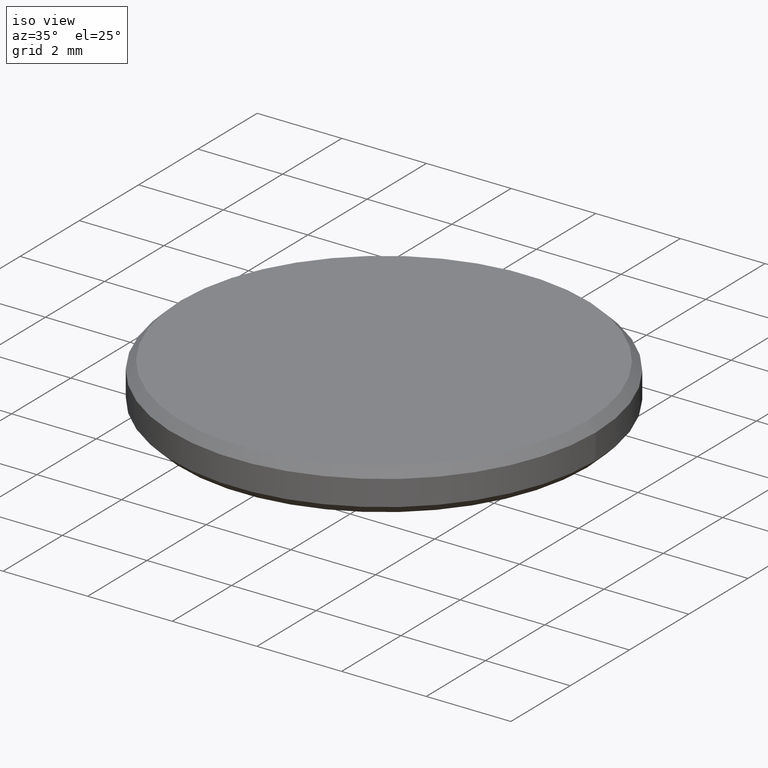
[diagram: clean part render]
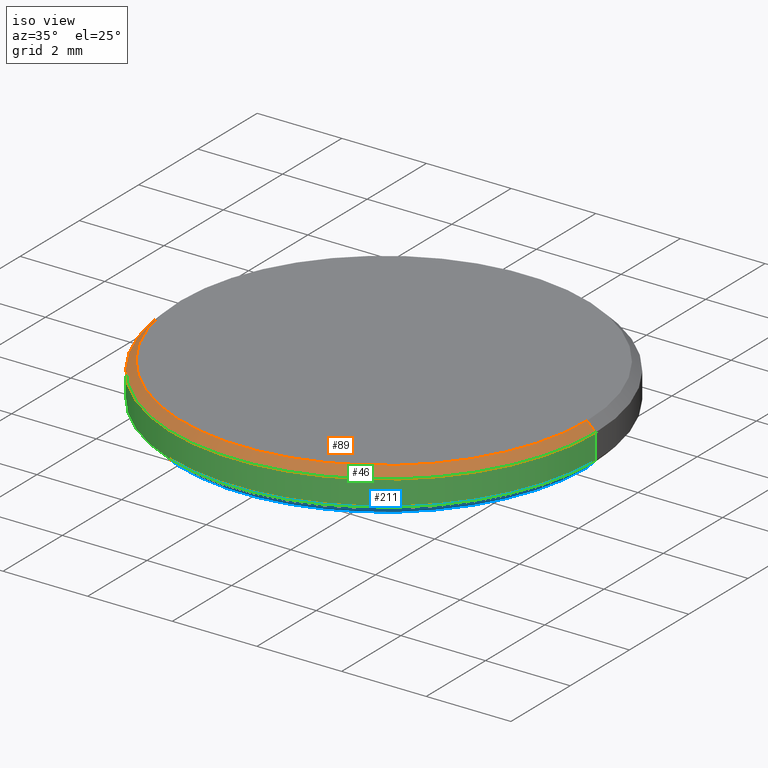
[diagram: same view with three faces highlighted in distinct colors, each labeled with its STEP entity id]
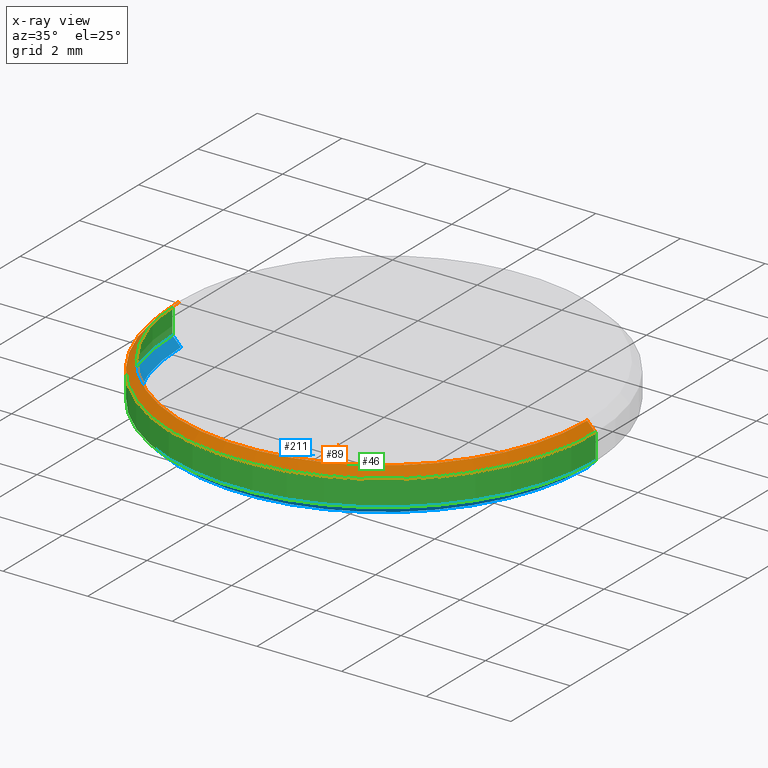
[diagram: x-ray of the same camera — body ghosted, the three highlighted faces saturated]
A machine part, iso view with three faces highlighted in distinct colors.
The next image is the same camera in x-ray (body ghosted, the three faces saturated) — at least one of them is partly hidden behind the body in this view.
Their STEP definitions:

[orange] entity #89 — the highlighted conical surface has half-angle 45 deg.
#6 = DIRECTION ( 'NONE',  ( 1.000000000000000000, 0.000000000000000000, 0.000000000000000000 ) ) ;
#14 = VECTOR ( 'NONE', #73, 1000.000000000000114 ) ;
#17 = CARTESIAN_POINT ( 'NONE',  ( -4.800000000000002487, 0.000000000000000000, 1.000000000000000000 ) ) ;
#19 = CARTESIAN_POINT ( 'NONE',  ( 5.000000000000000000, 6.123233995736766282E-16, 0.8000000000000012657 ) ) ;
#20 = EDGE_CURVE ( 'NONE', #198, #136, #74, .T. ) ;
#26 = CARTESIAN_POINT ( 'NONE',  ( 0.000000000000000000, 0.000000000000000000, 1.000000000000000000 ) ) ;
#39 = EDGE_LOOP ( 'NONE', ( #91, #157, #76, #140 ) ) ;
#55 = AXIS2_PLACEMENT_3D ( 'NONE', #181, #120, #6 ) ;
#60 = FACE_OUTER_BOUND ( 'NONE', #39, .T. ) ;
#66 = DIRECTION ( 'NONE',  ( 0.7071067811865460184, 8.659560562354913137E-17, -0.7071067811865489050 ) ) ;
#68 = LINE ( 'NONE', #133, #132 ) ;
#73 = DIRECTION ( 'NONE',  ( -0.7071067811865460184, 0.000000000000000000, -0.7071067811865489050 ) ) ;
#74 = LINE ( 'NONE', #17, #14 ) ;
#76 = ORIENTED_EDGE ( 'NONE', *, *, #20, .T. ) ;
#82 = DIRECTION ( 'NONE',  ( 1.000000000000000000, 0.000000000000000000, 0.000000000000000000 ) ) ;
#89 = ADVANCED_FACE ( 'NONE', ( #60 ), #175, .T. ) ;
#91 = ORIENTED_EDGE ( 'NONE', *, *, #170, .F. ) ;
#98 = DIRECTION ( 'NONE',  ( 0.000000000000000000, 0.000000000000000000, -1.000000000000000000 ) ) ;
#104 = AXIS2_PLACEMENT_3D ( 'NONE', #26, #179, #82 ) ;
#112 = CARTESIAN_POINT ( 'NONE',  ( -5.000000000000000000, 0.000000000000000000, 0.8000000000000012657 ) ) ;
#116 = CIRCLE ( 'NONE', #55, 5.000000000000000000 ) ;
#118 = CARTESIAN_POINT ( 'NONE',  ( -4.800000000000002487, 0.000000000000000000, 1.000000000000000000 ) ) ;
#120 = DIRECTION ( 'NONE',  ( 0.000000000000000000, 0.000000000000000000, -1.000000000000000000 ) ) ;
#124 = VERTEX_POINT ( 'NONE', #19 ) ;
#128 = CARTESIAN_POINT ( 'NONE',  ( 0.000000000000000000, 0.000000000000000000, 1.000000000000000000 ) ) ;
#132 = VECTOR ( 'NONE', #66, 1000.000000000000114 ) ;
#133 = CARTESIAN_POINT ( 'NONE',  ( 4.800000000000002487, 5.878304635907297169E-16, 1.000000000000000000 ) ) ;
#136 = VERTEX_POINT ( 'NONE', #112 ) ;
#140 = ORIENTED_EDGE ( 'NONE', *, *, #163, .F. ) ;
#143 = VERTEX_POINT ( 'NONE', #174 ) ;
#157 = ORIENTED_EDGE ( 'NONE', *, *, #183, .F. ) ;
#163 = EDGE_CURVE ( 'NONE', #124, #136, #116, .T. ) ;
#170 = EDGE_CURVE ( 'NONE', #143, #124, #68, .T. ) ;
#174 = CARTESIAN_POINT ( 'NONE',  ( 4.800000000000002487, 6.000769315822031726E-16, 1.000000000000000000 ) ) ;
#175 = CONICAL_SURFACE ( 'NONE', #216, 4.800000000000002487, 0.7853981633974461696 ) ;
#179 = DIRECTION ( 'NONE',  ( 0.000000000000000000, 0.000000000000000000, 1.000000000000000000 ) ) ;
#181 = CARTESIAN_POINT ( 'NONE',  ( 0.000000000000000000, 0.000000000000000000, 0.8000000000000012657 ) ) ;
#183 = EDGE_CURVE ( 'NONE', #198, #143, #202, .T. ) ;
#195 = DIRECTION ( 'NONE',  ( -1.000000000000000000, 0.000000000000000000, 0.000000000000000000 ) ) ;
#198 = VERTEX_POINT ( 'NONE', #118 ) ;
#202 = CIRCLE ( 'NONE', #104, 4.800000000000002487 ) ;
#216 = AXIS2_PLACEMENT_3D ( 'NONE', #128, #98, #195 ) ;

[blue] entity #211 — the highlighted conical surface has half-angle 45 deg.
#7 = DIRECTION ( 'NONE',  ( 0.7071067811865490160, 0.000000000000000000, 0.7071067811865459074 ) ) ;
#9 = CIRCLE ( 'NONE', #138, 4.799999999999999822 ) ;
#15 = CARTESIAN_POINT ( 'NONE',  ( 0.000000000000000000, 0.000000000000000000, 0.000000000000000000 ) ) ;
#31 = AXIS2_PLACEMENT_3D ( 'NONE', #102, #134, #205 ) ;
#32 = ORIENTED_EDGE ( 'NONE', *, *, #224, .T. ) ;
#36 = CARTESIAN_POINT ( 'NONE',  ( 4.799999999999999822, 0.000000000000000000, 0.000000000000000000 ) ) ;
#38 = EDGE_CURVE ( 'NONE', #93, #215, #9, .T. ) ;
#41 = DIRECTION ( 'NONE',  ( -0.000000000000000000, -0.000000000000000000, 1.000000000000000000 ) ) ;
#51 = VECTOR ( 'NONE', #239, 1000.000000000000000 ) ;
#61 = LINE ( 'NONE', #199, #51 ) ;
#64 = CONICAL_SURFACE ( 'NONE', #188, 5.000000000000000000, 0.7853981633974503884 ) ;
#71 = ORIENTED_EDGE ( 'NONE', *, *, #38, .F. ) ;
#79 = CARTESIAN_POINT ( 'NONE',  ( 5.000000000000000000, 0.000000000000000000, 0.1999999999999996503 ) ) ;
#93 = VERTEX_POINT ( 'NONE', #36 ) ;
#95 = CARTESIAN_POINT ( 'NONE',  ( -5.000000000000000000, 0.000000000000000000, 0.1999999999999996503 ) ) ;
#102 = CARTESIAN_POINT ( 'NONE',  ( 0.000000000000000000, 0.000000000000000000, 0.1999999999999996503 ) ) ;
#109 = CARTESIAN_POINT ( 'NONE',  ( 5.000000000000000000, 6.123233995736766282E-16, 0.1999999999999996503 ) ) ;
#110 = VERTEX_POINT ( 'NONE', #109 ) ;
#126 = ORIENTED_EDGE ( 'NONE', *, *, #131, .F. ) ;
#127 = VERTEX_POINT ( 'NONE', #95 ) ;
#131 = EDGE_CURVE ( 'NONE', #215, #127, #61, .T. ) ;
#134 = DIRECTION ( 'NONE',  ( -0.000000000000000000, -0.000000000000000000, 1.000000000000000000 ) ) ;
#137 = DIRECTION ( 'NONE',  ( -0.000000000000000000, -0.000000000000000000, -1.000000000000000000 ) ) ;
#138 = AXIS2_PLACEMENT_3D ( 'NONE', #15, #137, #218 ) ;
#150 = CARTESIAN_POINT ( 'NONE',  ( -4.799999999999999822, 6.000769315822029754E-16, 0.000000000000000000 ) ) ;
#158 = VECTOR ( 'NONE', #7, 1000.000000000000000 ) ;
#161 = LINE ( 'NONE', #79, #158 ) ;
#164 = CARTESIAN_POINT ( 'NONE',  ( 0.000000000000000000, 0.000000000000000000, 0.1999999999999996503 ) ) ;
#172 = ORIENTED_EDGE ( 'NONE', *, *, #190, .F. ) ;
#184 = DIRECTION ( 'NONE',  ( 1.000000000000000000, 0.000000000000000000, 0.000000000000000000 ) ) ;
#188 = AXIS2_PLACEMENT_3D ( 'NONE', #164, #41, #184 ) ;
#190 = EDGE_CURVE ( 'NONE', #127, #110, #226, .T. ) ;
#193 = EDGE_LOOP ( 'NONE', ( #126, #71, #32, #172 ) ) ;
#199 = CARTESIAN_POINT ( 'NONE',  ( -5.000000000000000000, 6.123233995736765296E-16, 0.1999999999999996503 ) ) ;
#205 = DIRECTION ( 'NONE',  ( 1.000000000000000000, 0.000000000000000000, 0.000000000000000000 ) ) ;
#209 = FACE_OUTER_BOUND ( 'NONE', #193, .T. ) ;
#211 = ADVANCED_FACE ( 'NONE', ( #209 ), #64, .T. ) ;
#215 = VERTEX_POINT ( 'NONE', #150 ) ;
#218 = DIRECTION ( 'NONE',  ( 1.000000000000000000, 0.000000000000000000, 0.000000000000000000 ) ) ;
#224 = EDGE_CURVE ( 'NONE', #93, #110, #161, .T. ) ;
#226 = CIRCLE ( 'NONE', #31, 5.000000000000000000 ) ;
#239 = DIRECTION ( 'NONE',  ( -0.7071067811865490160, 8.659560562354950115E-17, 0.7071067811865459074 ) ) ;

[green] entity #46 — the highlighted cylindrical surface (partial cylindrical patch) has radius 5 mm, axis along (-0, -0, -1).
#3 = DIRECTION ( 'NONE',  ( -0.000000000000000000, -0.000000000000000000, -1.000000000000000000 ) ) ;
#6 = DIRECTION ( 'NONE',  ( 1.000000000000000000, 0.000000000000000000, 0.000000000000000000 ) ) ;
#19 = CARTESIAN_POINT ( 'NONE',  ( 5.000000000000000000, 6.123233995736766282E-16, 0.8000000000000012657 ) ) ;
#21 = AXIS2_PLACEMENT_3D ( 'NONE', #125, #88, #194 ) ;
#23 = CARTESIAN_POINT ( 'NONE',  ( -5.000000000000000000, 0.000000000000000000, 1.000000000000000000 ) ) ;
#31 = AXIS2_PLACEMENT_3D ( 'NONE', #102, #134, #205 ) ;
#33 = FACE_OUTER_BOUND ( 'NONE', #34, .T. ) ;
#34 = EDGE_LOOP ( 'NONE', ( #192, #37, #58, #233 ) ) ;
#37 = ORIENTED_EDGE ( 'NONE', *, *, #163, .T. ) ;
#46 = ADVANCED_FACE ( 'NONE', ( #33 ), #53, .T. ) ;
#53 = CYLINDRICAL_SURFACE ( 'NONE', #21, 5.000000000000000000 ) ;
#55 = AXIS2_PLACEMENT_3D ( 'NONE', #181, #120, #6 ) ;
#58 = ORIENTED_EDGE ( 'NONE', *, *, #121, .T. ) ;
#65 = EDGE_CURVE ( 'NONE', #124, #110, #166, .T. ) ;
#88 = DIRECTION ( 'NONE',  ( -0.000000000000000000, -0.000000000000000000, -1.000000000000000000 ) ) ;
#95 = CARTESIAN_POINT ( 'NONE',  ( -5.000000000000000000, 0.000000000000000000, 0.1999999999999996503 ) ) ;
#97 = VECTOR ( 'NONE', #3, 1000.000000000000000 ) ;
#102 = CARTESIAN_POINT ( 'NONE',  ( 0.000000000000000000, 0.000000000000000000, 0.1999999999999996503 ) ) ;
#109 = CARTESIAN_POINT ( 'NONE',  ( 5.000000000000000000, 6.123233995736766282E-16, 0.1999999999999996503 ) ) ;
#110 = VERTEX_POINT ( 'NONE', #109 ) ;
#112 = CARTESIAN_POINT ( 'NONE',  ( -5.000000000000000000, 0.000000000000000000, 0.8000000000000012657 ) ) ;
#115 = DIRECTION ( 'NONE',  ( -0.000000000000000000, -0.000000000000000000, -1.000000000000000000 ) ) ;
#116 = CIRCLE ( 'NONE', #55, 5.000000000000000000 ) ;
#120 = DIRECTION ( 'NONE',  ( 0.000000000000000000, 0.000000000000000000, -1.000000000000000000 ) ) ;
#121 = EDGE_CURVE ( 'NONE', #136, #127, #171, .T. ) ;
#123 = VECTOR ( 'NONE', #115, 1000.000000000000000 ) ;
#124 = VERTEX_POINT ( 'NONE', #19 ) ;
#125 = CARTESIAN_POINT ( 'NONE',  ( 0.000000000000000000, 0.000000000000000000, 1.000000000000000000 ) ) ;
#127 = VERTEX_POINT ( 'NONE', #95 ) ;
#134 = DIRECTION ( 'NONE',  ( -0.000000000000000000, -0.000000000000000000, 1.000000000000000000 ) ) ;
#136 = VERTEX_POINT ( 'NONE', #112 ) ;
#163 = EDGE_CURVE ( 'NONE', #124, #136, #116, .T. ) ;
#166 = LINE ( 'NONE', #177, #123 ) ;
#171 = LINE ( 'NONE', #23, #97 ) ;
#177 = CARTESIAN_POINT ( 'NONE',  ( 5.000000000000000000, 6.123233995736766282E-16, 1.000000000000000000 ) ) ;
#181 = CARTESIAN_POINT ( 'NONE',  ( 0.000000000000000000, 0.000000000000000000, 0.8000000000000012657 ) ) ;
#190 = EDGE_CURVE ( 'NONE', #127, #110, #226, .T. ) ;
#192 = ORIENTED_EDGE ( 'NONE', *, *, #65, .F. ) ;
#194 = DIRECTION ( 'NONE',  ( -1.000000000000000000, 0.000000000000000000, 0.000000000000000000 ) ) ;
#205 = DIRECTION ( 'NONE',  ( 1.000000000000000000, 0.000000000000000000, 0.000000000000000000 ) ) ;
#226 = CIRCLE ( 'NONE', #31, 5.000000000000000000 ) ;
#233 = ORIENTED_EDGE ( 'NONE', *, *, #190, .T. ) ;